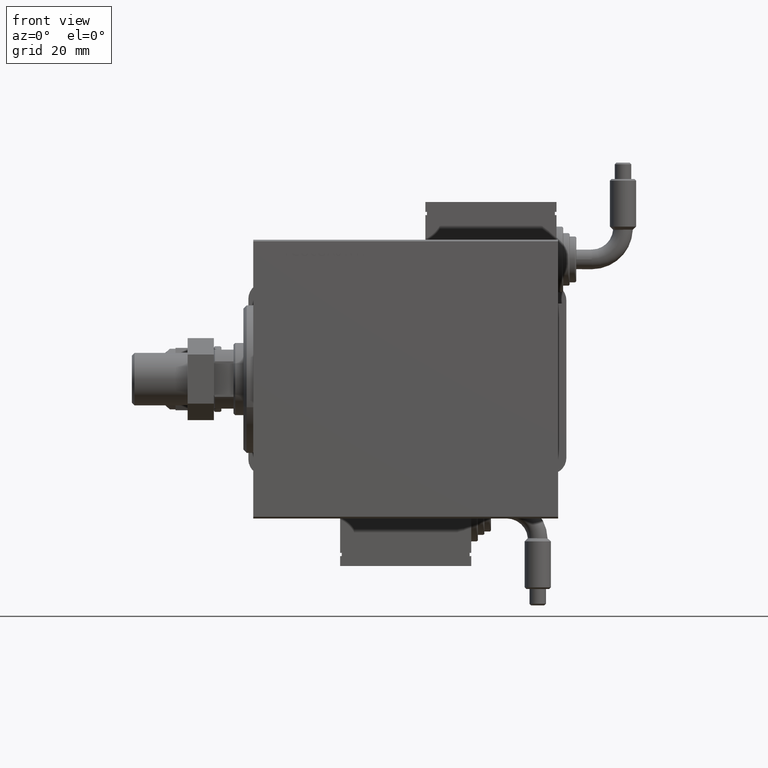
[diagram: clean part render]
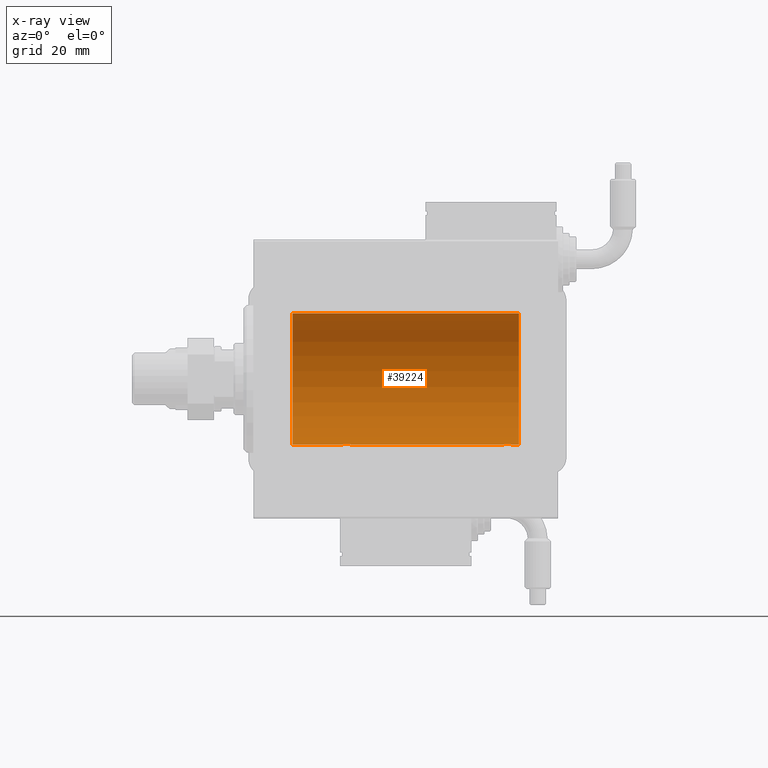
[diagram: x-ray — body ghosted, one internal face saturated and labeled with its STEP entity id]
A machine part, front view, then the same camera in x-ray: the body is ghosted and one INTERNAL B-rep face — a face not visible from any outside direction — is saturated and labeled: STEP entity #39224.
In plain terms, the highlighted cylindrical surface (partial cylindrical patch) has radius 20 mm, axis along (-1, -0, -0).
Its self-contained STEP definition (entity closure, byte-faithful):
#987 = CARTESIAN_POINT ( 'NONE',  ( 75.76423634872107016, 1.002099838626304695, -19.97517568592526871 ) ) ;
#1726 = LINE ( 'NONE', #2336, #42106 ) ;
#1745 = AXIS2_PLACEMENT_3D ( 'NONE', #45831, #49593, #54564 ) ;
#1990 = ORIENTED_EDGE ( 'NONE', *, *, #42447, .T. ) ;
#2136 = CARTESIAN_POINT ( 'NONE',  ( 30.43573148867292488, 0.5196544277756701691, -19.99365919015135518 ) ) ;
#2336 = CARTESIAN_POINT ( 'NONE',  ( 81.00000000000000000, 2.449293598294706513E-15, -20.00000000000000000 ) ) ;
#2742 = CARTESIAN_POINT ( 'NONE',  ( 29.71960275349742986, 1.590453176650915346, -19.93679350243183634 ) ) ;
#2789 = EDGE_CURVE ( 'NONE', #26878, #52768, #46208, .T. ) ;
#3924 = EDGE_CURVE ( 'NONE', #26878, #60558, #40289, .T. ) ;
#4038 = DIRECTION ( 'NONE',  ( -1.000000000000000000, -0.000000000000000000, -0.000000000000000000 ) ) ;
#5124 = CARTESIAN_POINT ( 'NONE',  ( 11.99999999999999645, 2.449293598294706513E-15, -20.00000000000000000 ) ) ;
#5181 = CARTESIAN_POINT ( 'NONE',  ( 11.99999999999999645, 0.000000000000000000, 20.00000000000000000 ) ) ;
#5272 = CIRCLE ( 'NONE', #48167, 20.00000000000000000 ) ;
#5982 = CARTESIAN_POINT ( 'NONE',  ( 75.50000000000001421, -5.133775462521235346E-15, -20.00000000000000000 ) ) ;
#6290 = CARTESIAN_POINT ( 'NONE',  ( 78.50297226784954319, 1.735228749583831442, -19.92471474456648650 ) ) ;
#6713 = DIRECTION ( 'NONE',  ( -1.000000000000000000, -0.000000000000000000, -0.000000000000000000 ) ) ;
#6822 = CARTESIAN_POINT ( 'NONE',  ( 29.38596189455837049, 1.797847595792762432, -19.91909332229799290 ) ) ;
#6983 = ORIENTED_EDGE ( 'NONE', *, *, #13702, .F. ) ;
#7123 = CARTESIAN_POINT ( 'NONE',  ( 29.01899474186110695, 1.935912154109695082, -19.90610216711450420 ) ) ;
#7422 = CARTESIAN_POINT ( 'NONE',  ( 27.27049887769365810, 1.598854313793178994, -19.93684595445884256 ) ) ;
#7640 = CARTESIAN_POINT ( 'NONE',  ( 30.50000000000000000, 2.449293582768389958E-15, -20.00000000000000000 ) ) ;
#7724 = FACE_OUTER_BOUND ( 'NONE', #35493, .T. ) ;
#7734 = CARTESIAN_POINT ( 'NONE',  ( 29.82060165083834846, 1.507796451871724175, -19.94330239452387943 ) ) ;
#8527 = LINE ( 'NONE', #14144, #29964 ) ;
#9347 = CARTESIAN_POINT ( 'NONE',  ( 81.00000000000000000, 2.449293598294706513E-15, -20.00000000000000000 ) ) ;
#9555 = AXIS2_PLACEMENT_3D ( 'NONE', #45069, #15706, #11032 ) ;
#10664 = CARTESIAN_POINT ( 'NONE',  ( 76.49354240926169268, 1.747830109444730384, -19.92373272380676497 ) ) ;
#11032 = DIRECTION ( 'NONE',  ( 0.000000000000000000, 0.000000000000000000, 1.000000000000000000 ) ) ;
#11290 = CARTESIAN_POINT ( 'NONE',  ( 76.97486091545005138, 1.947330458682943188, -19.90522393307485771 ) ) ;
#11503 = CARTESIAN_POINT ( 'NONE',  ( 29.14371130639851160, 1.898109641280501636, -19.90978941500366872 ) ) ;
#11508 = CARTESIAN_POINT ( 'NONE',  ( 81.00000000000000000, 0.000000000000000000, 20.00000000000000000 ) ) ;
#11532 = ORIENTED_EDGE ( 'NONE', *, *, #32650, .T. ) ;
#12499 = CARTESIAN_POINT ( 'NONE',  ( 79.43573148867291422, 0.5196544277756690589, -19.99365919015135518 ) ) ;
#12724 = CARTESIAN_POINT ( 'NONE',  ( 26.51298505384673732, 0.2622407139811037680, -19.99868965376114716 ) ) ;
#13702 = EDGE_CURVE ( 'NONE', #34954, #29818, #8527, .T. ) ;
#13972 = CARTESIAN_POINT ( 'NONE',  ( 79.39789687358864967, 0.6443418861413126031, -19.98998539619404724 ) ) ;
#14144 = CARTESIAN_POINT ( 'NONE',  ( 81.00000000000000000, 2.449293598294706513E-15, -20.00000000000000000 ) ) ;
#15317 = DIRECTION ( 'NONE',  ( -1.000000000000000000, 0.000000000000000000, 0.000000000000000000 ) ) ;
#15545 = VECTOR ( 'NONE', #16583, 1000.000000000000000 ) ;
#15706 = DIRECTION ( 'NONE',  ( -1.000000000000000000, 0.000000000000000000, 0.000000000000000000 ) ) ;
#15967 = CARTESIAN_POINT ( 'NONE',  ( 78.01899474186112116, 1.935912154109691752, -19.90610216711450775 ) ) ;
#16274 = CARTESIAN_POINT ( 'NONE',  ( 79.29753901127162408, 0.8865903856744312694, -19.98070694681039328 ) ) ;
#16471 = CYLINDRICAL_SURFACE ( 'NONE', #1745, 20.00000000000000000 ) ;
#16583 = DIRECTION ( 'NONE',  ( -1.000000000000000000, -0.000000000000000000, -0.000000000000000000 ) ) ;
#16896 = CARTESIAN_POINT ( 'NONE',  ( 81.00000000000000000, 0.000000000000000000, 20.00000000000000000 ) ) ;
#17344 = B_SPLINE_CURVE_WITH_KNOTS ( 'NONE', 3,
 ( #5982, #34394, #24720, #35337, #54058, #40023, #987, #43773, #39392, #34715, #10664, #11290, #29705, #48771, #25030, #15967, #44086, #58437, #6290, #20652, #49385, #25351, #25669, #44716, #16274, #13972, #12499, #51763, #54957, #26563 ),
 .UNSPECIFIED., .F., .F.,
 ( 4, 2, 2, 2, 2, 2, 2, 2, 2, 2, 2, 2, 2, 2, 4 ),
 ( 2.321975990544223827E-18, 0.0003910512220831165522, 0.0007821024441662306108, 0.001173153666249344886, 0.001564204888332458836, 0.002346307332498715360, 0.003128409776664972317, 0.003519460998748080629, 0.003910512220831188074, 0.004301563442914295952, 0.004692614664997402096, 0.005083665887080509975, 0.005474717109163616986, 0.005865768331246724865, 0.006256819553329831876 ),
 .UNSPECIFIED. ) ;
#18884 = EDGE_CURVE ( 'NONE', #54813, #60558, #1726, .T. ) ;
#20140 = EDGE_CURVE ( 'NONE', #57363, #52768, #5272, .T. ) ;
#20596 = ORIENTED_EDGE ( 'NONE', *, *, #18884, .F. ) ;
#20652 = CARTESIAN_POINT ( 'NONE',  ( 78.71960275349745473, 1.590453176650917566, -19.93679350243184345 ) ) ;
#21181 = CARTESIAN_POINT ( 'NONE',  ( 30.48691292011447374, 0.2631998640366455255, -19.99867931558985745 ) ) ;
#21789 = CARTESIAN_POINT ( 'NONE',  ( 30.29753901127163118, 0.8865903856744307143, -19.98070694681039683 ) ) ;
#24720 = CARTESIAN_POINT ( 'NONE',  ( 75.51298505384674797, 0.2622407139811032684, -19.99868965376115071 ) ) ;
#25030 = CARTESIAN_POINT ( 'NONE',  ( 77.76241417820003221, 1.987020435121066742, -19.90106552791689154 ) ) ;
#25351 = CARTESIAN_POINT ( 'NONE',  ( 79.00738641543991037, 1.321069663197662614, -19.95654117037011233 ) ) ;
#25362 = LINE ( 'NONE', #16896, #15545 ) ;
#25573 = CARTESIAN_POINT ( 'NONE',  ( 26.90940266542447645, 1.219458756546263789, -19.96308513509966787 ) ) ;
#25669 = CARTESIAN_POINT ( 'NONE',  ( 79.09007067689672965, 1.220099331833893741, -19.96304379627740744 ) ) ;
#25877 = CARTESIAN_POINT ( 'NONE',  ( 30.00738641543989260, 1.321069663197666388, -19.95654117037011588 ) ) ;
#26475 = CARTESIAN_POINT ( 'NONE',  ( 29.50297226784953608, 1.735228749583830332, -19.92471474456648650 ) ) ;
#26563 = CARTESIAN_POINT ( 'NONE',  ( 79.50000000000001421, 2.449293582762867932E-15, -20.00000000000000000 ) ) ;
#26782 = CARTESIAN_POINT ( 'NONE',  ( 30.39789687358864967, 0.6443418861413116039, -19.98998539619404724 ) ) ;
#26878 = VERTEX_POINT ( 'NONE', #46980 ) ;
#29705 = CARTESIAN_POINT ( 'NONE',  ( 77.23819846102561826, 1.999905101582715394, -19.89975827978156531 ) ) ;
#29818 = VERTEX_POINT ( 'NONE', #39680 ) ;
#29964 = VECTOR ( 'NONE', #51625, 1000.000000000000000 ) ;
#30505 = EDGE_CURVE ( 'NONE', #53112, #34954, #40489, .T. ) ;
#30632 = ORIENTED_EDGE ( 'NONE', *, *, #30505, .F. ) ;
#31156 = CARTESIAN_POINT ( 'NONE',  ( 26.50000000000001066, 0.1322335637814670561, -19.99999999999999645 ) ) ;
#31461 = CARTESIAN_POINT ( 'NONE',  ( 28.62981181290706090, 2.000047251570884477, -19.89974399317115683 ) ) ;
#31779 = CARTESIAN_POINT ( 'NONE',  ( 26.70278656943304796, 0.8872481584516701547, -19.98067755938510004 ) ) ;
#32496 = ORIENTED_EDGE ( 'NONE', *, *, #2789, .F. ) ;
#32650 = EDGE_CURVE ( 'NONE', #53112, #57363, #25362, .T. ) ;
#34394 = CARTESIAN_POINT ( 'NONE',  ( 75.50000000000002842, 0.1322335637814657239, -20.00000000000000355 ) ) ;
#34715 = CARTESIAN_POINT ( 'NONE',  ( 76.27049887769368297, 1.598854313793175885, -19.93684595445884966 ) ) ;
#34954 = VERTEX_POINT ( 'NONE', #36510 ) ;
#35337 = CARTESIAN_POINT ( 'NONE',  ( 75.56384771616671969, 0.5179893069484544643, -19.99370013622813858 ) ) ;
#35493 = EDGE_LOOP ( 'NONE', ( #6983, #30632, #11532, #42752, #32496, #58512, #20596, #1990 ) ) ;
#36510 = CARTESIAN_POINT ( 'NONE',  ( 81.00000000000000000, 2.449293598294706513E-15, -20.00000000000000000 ) ) ;
#39224 = ADVANCED_FACE ( 'NONE', ( #7724 ), #16471, .F. ) ;
#39392 = CARTESIAN_POINT ( 'NONE',  ( 75.99384229619288078, 1.322305185229300184, -19.95645382900616482 ) ) ;
#39680 = CARTESIAN_POINT ( 'NONE',  ( 79.50000000000001421, 2.449293582762867932E-15, -20.00000000000000000 ) ) ;
#40023 = CARTESIAN_POINT ( 'NONE',  ( 75.70278656943304441, 0.8872481584516642705, -19.98067755938510359 ) ) ;
#40242 = CARTESIAN_POINT ( 'NONE',  ( 30.09007067689674741, 1.220099331833897294, -19.96304379627741099 ) ) ;
#40289 = B_SPLINE_CURVE_WITH_KNOTS ( 'NONE', 3,
 ( #54871, #31156, #12724, #54573, #55493, #31779, #50209, #25573, #45531, #7422, #49901, #44618, #58971, #31461, #50513, #7123, #11503, #6822, #26475, #2742, #7734, #25877, #40242, #44929, #21789, #26782, #2136, #21181, #40847, #41773 ),
 .UNSPECIFIED., .F., .F.,
 ( 4, 2, 2, 2, 2, 2, 2, 2, 2, 2, 2, 2, 2, 2, 4 ),
 ( 5.963022395843225278E-20, 0.0003910512220831150344, 0.0007821024441662300687, 0.001173153666249344886, 0.001564204888332459921, 0.002346307332498689339, 0.003128409776664918974, 0.003519460998748033791, 0.003910512220831149043, 0.004301563442914263860, 0.004692614664997378678, 0.005083665887080494362, 0.005474717109163609180, 0.005865768331246723997, 0.006256819553329837948 ),
 .UNSPECIFIED. ) ;
#40489 = CIRCLE ( 'NONE', #9555, 20.00000000000000000 ) ;
#40847 = CARTESIAN_POINT ( 'NONE',  ( 30.50000000000000000, 0.1305706983324451675, -19.99999999999999289 ) ) ;
#41773 = CARTESIAN_POINT ( 'NONE',  ( 30.50000000000000000, 2.449293582768389958E-15, -20.00000000000000000 ) ) ;
#42106 = VECTOR ( 'NONE', #6713, 1000.000000000000000 ) ;
#42447 = EDGE_CURVE ( 'NONE', #54813, #29818, #17344, .T. ) ;
#42752 = ORIENTED_EDGE ( 'NONE', *, *, #20140, .T. ) ;
#43773 = CARTESIAN_POINT ( 'NONE',  ( 75.90940266542450843, 1.219458756546260236, -19.96308513509967497 ) ) ;
#44086 = CARTESIAN_POINT ( 'NONE',  ( 78.14371130639851515, 1.898109641280498527, -19.90978941500366517 ) ) ;
#44618 = CARTESIAN_POINT ( 'NONE',  ( 27.97486091545001230, 1.947330458682949850, -19.90522393307485061 ) ) ;
#44716 = CARTESIAN_POINT ( 'NONE',  ( 79.23489454601983084, 1.003547732426802730, -19.97510079925436699 ) ) ;
#44929 = CARTESIAN_POINT ( 'NONE',  ( 30.23489454601983795, 1.003547732426805617, -19.97510079925437054 ) ) ;
#45069 = CARTESIAN_POINT ( 'NONE',  ( 81.00000000000000000, 0.000000000000000000, 0.000000000000000000 ) ) ;
#45531 = CARTESIAN_POINT ( 'NONE',  ( 26.99384229619287012, 1.322305185229304625, -19.95645382900617548 ) ) ;
#45831 = CARTESIAN_POINT ( 'NONE',  ( 81.00000000000000000, 0.000000000000000000, 0.000000000000000000 ) ) ;
#46208 = LINE ( 'NONE', #9347, #58509 ) ;
#46980 = CARTESIAN_POINT ( 'NONE',  ( 26.50000000000000355, -6.257798774011376898E-15, -20.00000000000000000 ) ) ;
#48167 = AXIS2_PLACEMENT_3D ( 'NONE', #58113, #15317, #48752 ) ;
#48752 = DIRECTION ( 'NONE',  ( 0.000000000000000000, 0.000000000000000000, 1.000000000000000000 ) ) ;
#48771 = CARTESIAN_POINT ( 'NONE',  ( 77.62981181290709287, 2.000047251570880036, -19.89974399317116038 ) ) ;
#49385 = CARTESIAN_POINT ( 'NONE',  ( 78.82060165083835557, 1.507796451871721066, -19.94330239452388298 ) ) ;
#49593 = DIRECTION ( 'NONE',  ( -1.000000000000000000, -0.000000000000000000, -0.000000000000000000 ) ) ;
#49901 = CARTESIAN_POINT ( 'NONE',  ( 27.49354240926169268, 1.747830109444738156, -19.92373272380676852 ) ) ;
#50209 = CARTESIAN_POINT ( 'NONE',  ( 26.76423634872104884, 1.002099838626308248, -19.97517568592526160 ) ) ;
#50513 = CARTESIAN_POINT ( 'NONE',  ( 28.76241417820002155, 1.987020435121070516, -19.90106552791689154 ) ) ;
#51625 = DIRECTION ( 'NONE',  ( -1.000000000000000000, -0.000000000000000000, -0.000000000000000000 ) ) ;
#51763 = CARTESIAN_POINT ( 'NONE',  ( 79.48691292011449150, 0.2631998640366452480, -19.99867931558986101 ) ) ;
#52768 = VERTEX_POINT ( 'NONE', #5124 ) ;
#53112 = VERTEX_POINT ( 'NONE', #11508 ) ;
#54058 = CARTESIAN_POINT ( 'NONE',  ( 75.60234886833929124, 0.6450624715427508704, -19.98996196681220994 ) ) ;
#54203 = CARTESIAN_POINT ( 'NONE',  ( 75.50000000000001421, -5.133775462521235346E-15, -20.00000000000000000 ) ) ;
#54564 = DIRECTION ( 'NONE',  ( 0.000000000000000000, 0.000000000000000000, 1.000000000000000000 ) ) ;
#54573 = CARTESIAN_POINT ( 'NONE',  ( 26.56384771616671969, 0.5179893069484556856, -19.99370013622814568 ) ) ;
#54813 = VERTEX_POINT ( 'NONE', #54203 ) ;
#54871 = CARTESIAN_POINT ( 'NONE',  ( 26.50000000000000355, -6.257798774011376898E-15, -20.00000000000000000 ) ) ;
#54957 = CARTESIAN_POINT ( 'NONE',  ( 79.50000000000000000, 0.1305706983324447512, -20.00000000000000000 ) ) ;
#55493 = CARTESIAN_POINT ( 'NONE',  ( 26.60234886833925927, 0.6450624715427553113, -19.98996196681220638 ) ) ;
#57363 = VERTEX_POINT ( 'NONE', #5181 ) ;
#58113 = CARTESIAN_POINT ( 'NONE',  ( 11.99999999999999645, 0.000000000000000000, 0.000000000000000000 ) ) ;
#58437 = CARTESIAN_POINT ( 'NONE',  ( 78.38596189455837759, 1.797847595792761100, -19.91909332229798579 ) ) ;
#58509 = VECTOR ( 'NONE', #4038, 1000.000000000000000 ) ;
#58512 = ORIENTED_EDGE ( 'NONE', *, *, #3924, .T. ) ;
#58971 = CARTESIAN_POINT ( 'NONE',  ( 28.23819846102561826, 1.999905101582720279, -19.89975827978156886 ) ) ;
#60558 = VERTEX_POINT ( 'NONE', #7640 ) ;